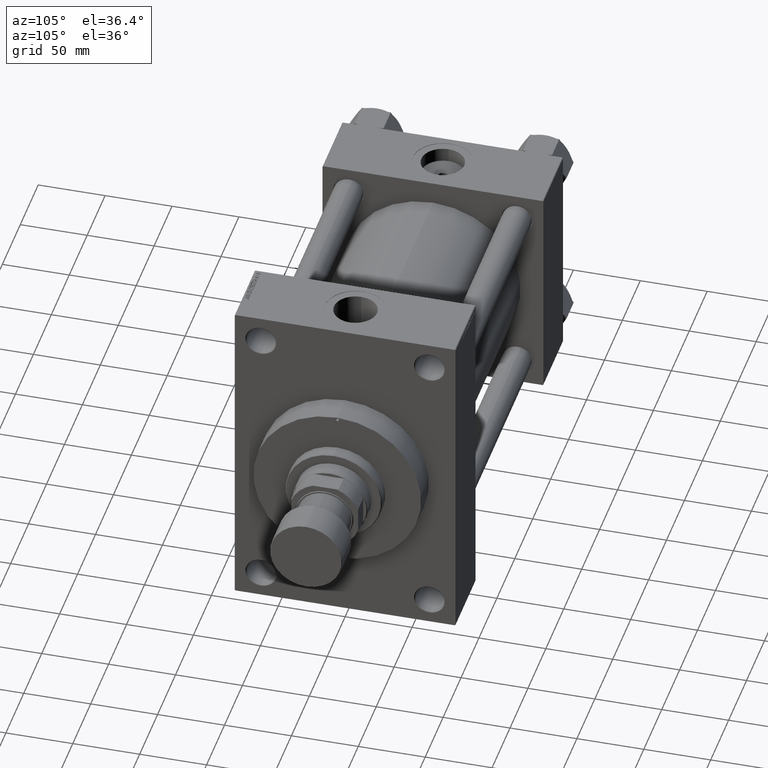
[diagram: clean part render]
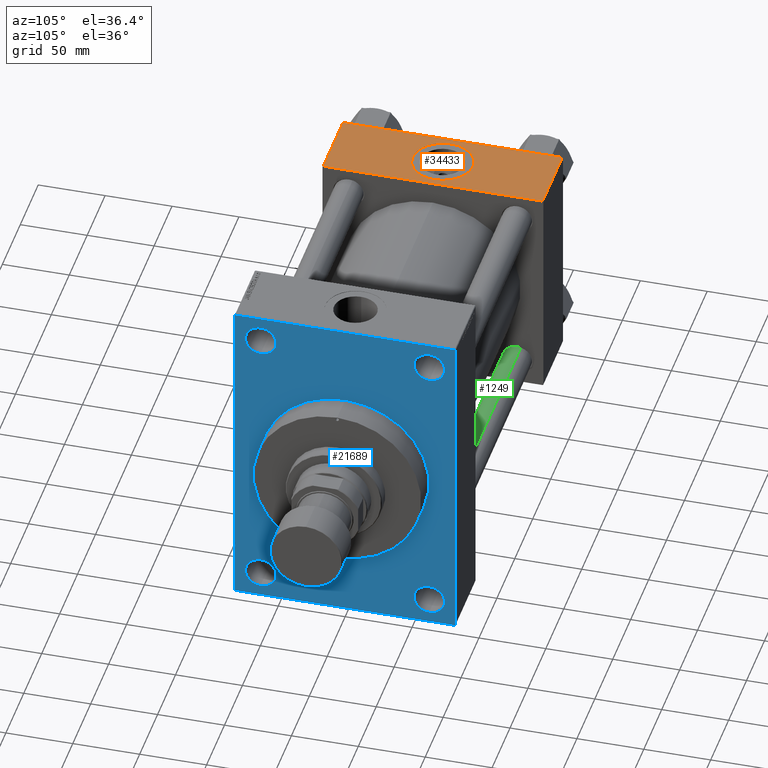
[diagram: same view with three faces highlighted in distinct colors, each labeled with its STEP entity id]
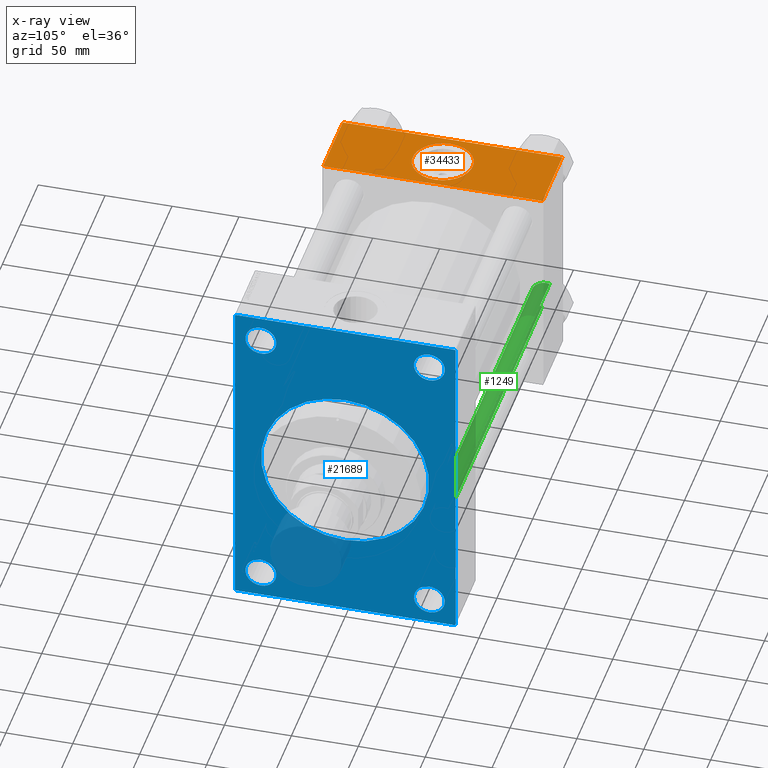
[diagram: x-ray of the same camera — body ghosted, the three highlighted faces saturated]
A machine part, auxiliary view with three faces highlighted in distinct colors.
The next image is the same camera in x-ray (body ghosted, the three faces saturated) — at least one of them is partly hidden behind the body in this view.
Their STEP definitions:

[orange] entity #34433 — the highlighted planar face has unit normal (0, 0, -1).
#263 = DIRECTION ( 'NONE',  ( 0.000000000000000000, 1.000000000000000000, 8.410780489584519171E-17 ) ) ;
#538 = EDGE_LOOP ( 'NONE', ( #36814, #48332 ) ) ;
#925 = CARTESIAN_POINT ( 'NONE',  ( 0.000000000000000000, 82.00000000000005684, 82.50000000000002842 ) ) ;
#1669 = DIRECTION ( 'NONE',  ( 0.000000000000000000, 0.000000000000000000, 1.000000000000000000 ) ) ;
#1886 = VERTEX_POINT ( 'NONE', #32126 ) ;
#2203 = EDGE_CURVE ( 'NONE', #10180, #31704, #31839, .T. ) ;
#3497 = DIRECTION ( 'NONE',  ( -1.000000000000000000, 0.000000000000000000, 0.000000000000000000 ) ) ;
#4707 = AXIS2_PLACEMENT_3D ( 'NONE', #33230, #25901, #263 ) ;
#4759 = CARTESIAN_POINT ( 'NONE',  ( 55.00000000000000000, -81.99999999999997158, 82.50000000000001421 ) ) ;
#7058 = CARTESIAN_POINT ( 'NONE',  ( 0.000000000000000000, 82.50000000000002842, 82.50000000000002842 ) ) ;
#9360 = ORIENTED_EDGE ( 'NONE', *, *, #10291, .T. ) ;
#10180 = VERTEX_POINT ( 'NONE', #20505 ) ;
#10291 = EDGE_CURVE ( 'NONE', #10375, #36342, #36356, .T. ) ;
#10375 = VERTEX_POINT ( 'NONE', #925 ) ;
#10455 = VECTOR ( 'NONE', #34538, 1000.000000000000000 ) ;
#11335 = ORIENTED_EDGE ( 'NONE', *, *, #2203, .F. ) ;
#13257 = CARTESIAN_POINT ( 'NONE',  ( 55.00000000000000000, 82.50000000000002842, 82.50000000000002842 ) ) ;
#14947 = VECTOR ( 'NONE', #28167, 1000.000000000000000 ) ;
#17334 = EDGE_CURVE ( 'NONE', #36342, #31704, #23549, .T. ) ;
#18030 = DIRECTION ( 'NONE',  ( 0.000000000000000000, -1.000000000000000000, -8.410780489584519171E-17 ) ) ;
#18689 = CIRCLE ( 'NONE', #30388, 22.50000000000000355 ) ;
#20214 = CARTESIAN_POINT ( 'NONE',  ( 27.50000000000000000, -8.673617379884037050E-15, 82.50000000000001421 ) ) ;
#20505 = CARTESIAN_POINT ( 'NONE',  ( 55.00000000000000000, 82.00000000000005684, 82.50000000000002842 ) ) ;
#23549 = LINE ( 'NONE', #4759, #10455 ) ;
#24131 = VERTEX_POINT ( 'NONE', #35245 ) ;
#24797 = CIRCLE ( 'NONE', #27118, 22.50000000000000355 ) ;
#25471 = CARTESIAN_POINT ( 'NONE',  ( 0.000000000000000000, 82.00000000000005684, 82.50000000000002842 ) ) ;
#25901 = DIRECTION ( 'NONE',  ( 0.000000000000000000, 8.410780489584519171E-17, -1.000000000000000000 ) ) ;
#26382 = FACE_OUTER_BOUND ( 'NONE', #33188, .T. ) ;
#26715 = EDGE_CURVE ( 'NONE', #1886, #24131, #24797, .T. ) ;
#27118 = AXIS2_PLACEMENT_3D ( 'NONE', #20214, #1669, #38534 ) ;
#28167 = DIRECTION ( 'NONE',  ( 0.000000000000000000, -1.000000000000000000, -8.410780489584519171E-17 ) ) ;
#29941 = VECTOR ( 'NONE', #3497, 1000.000000000000000 ) ;
#30388 = AXIS2_PLACEMENT_3D ( 'NONE', #46529, #38693, #35506 ) ;
#30810 = CARTESIAN_POINT ( 'NONE',  ( 0.000000000000000000, -81.99999999999997158, 82.50000000000001421 ) ) ;
#31704 = VERTEX_POINT ( 'NONE', #34941 ) ;
#31839 = LINE ( 'NONE', #13257, #14947 ) ;
#32126 = CARTESIAN_POINT ( 'NONE',  ( 50.00000000000000000, -8.673617379884037050E-15, 82.50000000000001421 ) ) ;
#33188 = EDGE_LOOP ( 'NONE', ( #9360, #47597, #11335, #34666 ) ) ;
#33230 = CARTESIAN_POINT ( 'NONE',  ( 55.00000000000000000, 82.50000000000002842, 82.50000000000002842 ) ) ;
#33495 = EDGE_CURVE ( 'NONE', #24131, #1886, #18689, .T. ) ;
#34182 = FACE_BOUND ( 'NONE', #538, .T. ) ;
#34433 = ADVANCED_FACE ( 'NONE', ( #34182, #26382 ), #40556, .F. ) ;
#34538 = DIRECTION ( 'NONE',  ( 1.000000000000000000, 0.000000000000000000, 0.000000000000000000 ) ) ;
#34666 = ORIENTED_EDGE ( 'NONE', *, *, #39026, .T. ) ;
#34941 = CARTESIAN_POINT ( 'NONE',  ( 55.00000000000000000, -81.99999999999997158, 82.50000000000001421 ) ) ;
#35245 = CARTESIAN_POINT ( 'NONE',  ( 4.999999999999993783, -5.918162081802491483E-15, 82.50000000000001421 ) ) ;
#35506 = DIRECTION ( 'NONE',  ( 1.000000000000000000, 0.000000000000000000, 0.000000000000000000 ) ) ;
#36342 = VERTEX_POINT ( 'NONE', #30810 ) ;
#36356 = LINE ( 'NONE', #7058, #42336 ) ;
#36814 = ORIENTED_EDGE ( 'NONE', *, *, #26715, .F. ) ;
#38534 = DIRECTION ( 'NONE',  ( 1.000000000000000000, 0.000000000000000000, 0.000000000000000000 ) ) ;
#38693 = DIRECTION ( 'NONE',  ( 0.000000000000000000, 0.000000000000000000, 1.000000000000000000 ) ) ;
#39026 = EDGE_CURVE ( 'NONE', #10180, #10375, #44764, .T. ) ;
#40556 = PLANE ( 'NONE',  #4707 ) ;
#42336 = VECTOR ( 'NONE', #18030, 1000.000000000000000 ) ;
#44764 = LINE ( 'NONE', #25471, #29941 ) ;
#46529 = CARTESIAN_POINT ( 'NONE',  ( 27.50000000000000000, -8.673617379884037050E-15, 82.50000000000001421 ) ) ;
#47597 = ORIENTED_EDGE ( 'NONE', *, *, #17334, .T. ) ;
#48332 = ORIENTED_EDGE ( 'NONE', *, *, #33495, .F. ) ;

[blue] entity #21689 — the highlighted planar face has unit normal (-1, 0, 0).
#25 = FACE_BOUND ( 'NONE', #29061, .T. ) ;
#147 = AXIS2_PLACEMENT_3D ( 'NONE', #7076, #21965, #48123 ) ;
#179 = AXIS2_PLACEMENT_3D ( 'NONE', #40265, #32699, #11196 ) ;
#791 = EDGE_LOOP ( 'NONE', ( #25084, #17901 ) ) ;
#900 = CIRCLE ( 'NONE', #147, 11.50000000000001066 ) ;
#1728 = CARTESIAN_POINT ( 'NONE',  ( 300.0000000000000000, 0.000000000000000000, -62.75000000000000000 ) ) ;
#1750 = CIRCLE ( 'NONE', #179, 62.75000000000000000 ) ;
#2105 = CARTESIAN_POINT ( 'NONE',  ( 300.0000000000000000, 82.49999999999998579, 123.0000000000000711 ) ) ;
#2107 = EDGE_CURVE ( 'NONE', #7606, #47953, #27430, .T. ) ;
#2146 = CARTESIAN_POINT ( 'NONE',  ( 300.0000000000000000, -82.00000000000002842, -123.5000000000000142 ) ) ;
#2496 = DIRECTION ( 'NONE',  ( -1.000000000000000000, 0.000000000000000000, -0.000000000000000000 ) ) ;
#2520 = VERTEX_POINT ( 'NONE', #31869 ) ;
#3097 = EDGE_CURVE ( 'NONE', #2520, #12336, #32935, .T. ) ;
#3196 = FACE_BOUND ( 'NONE', #32893, .T. ) ;
#3305 = CARTESIAN_POINT ( 'NONE',  ( 300.0000000000000000, 63.00000000000000000, 115.5000000000000000 ) ) ;
#3348 = ORIENTED_EDGE ( 'NONE', *, *, #2107, .T. ) ;
#3439 = CARTESIAN_POINT ( 'NONE',  ( 300.0000000000000000, -82.00000000000002842, -123.5000000000000142 ) ) ;
#3447 = DIRECTION ( 'NONE',  ( -1.000000000000000000, 0.000000000000000000, -0.000000000000000000 ) ) ;
#3481 = VECTOR ( 'NONE', #30171, 1000.000000000000000 ) ;
#3922 = DIRECTION ( 'NONE',  ( 0.000000000000000000, 0.000000000000000000, 1.000000000000000000 ) ) ;
#4113 = DIRECTION ( 'NONE',  ( 0.000000000000000000, 0.000000000000000000, 1.000000000000000000 ) ) ;
#4199 = ORIENTED_EDGE ( 'NONE', *, *, #5334, .T. ) ;
#4719 = CARTESIAN_POINT ( 'NONE',  ( 300.0000000000000000, -63.00000000000000000, 103.9999999999999858 ) ) ;
#5043 = CIRCLE ( 'NONE', #39371, 62.75000000000000000 ) ;
#5229 = CARTESIAN_POINT ( 'NONE',  ( 300.0000000000000000, 82.50000000000000000, -122.9999999999999858 ) ) ;
#5334 = EDGE_CURVE ( 'NONE', #20241, #16089, #900, .T. ) ;
#5939 = CARTESIAN_POINT ( 'NONE',  ( 300.0000000000000000, -63.00000000000000000, -104.0000000000000142 ) ) ;
#6368 = EDGE_CURVE ( 'NONE', #11572, #12476, #15399, .T. ) ;
#6537 = EDGE_CURVE ( 'NONE', #11346, #32465, #1750, .T. ) ;
#6559 = CARTESIAN_POINT ( 'NONE',  ( 300.0000000000000000, 82.49999999999998579, 123.5000000000000142 ) ) ;
#7076 = CARTESIAN_POINT ( 'NONE',  ( 300.0000000000000000, 63.00000000000000000, 104.0000000000000000 ) ) ;
#7172 = VECTOR ( 'NONE', #22958, 1000.000000000000000 ) ;
#7193 = ORIENTED_EDGE ( 'NONE', *, *, #15031, .T. ) ;
#7349 = DIRECTION ( 'NONE',  ( -1.000000000000000000, 0.000000000000000000, -0.000000000000000000 ) ) ;
#7606 = VERTEX_POINT ( 'NONE', #29722 ) ;
#7934 = CARTESIAN_POINT ( 'NONE',  ( 300.0000000000000000, 82.49999999999998579, 123.5000000000000142 ) ) ;
#8031 = VERTEX_POINT ( 'NONE', #17424 ) ;
#8472 = CARTESIAN_POINT ( 'NONE',  ( 300.0000000000000000, 82.00000000000004263, 123.5000000000000142 ) ) ;
#8824 = CIRCLE ( 'NONE', #36107, 11.50000000000001066 ) ;
#9457 = ORIENTED_EDGE ( 'NONE', *, *, #6537, .T. ) ;
#10754 = FACE_BOUND ( 'NONE', #791, .T. ) ;
#11196 = DIRECTION ( 'NONE',  ( 0.000000000000000000, 0.000000000000000000, 1.000000000000000000 ) ) ;
#11346 = VERTEX_POINT ( 'NONE', #1728 ) ;
#11572 = VERTEX_POINT ( 'NONE', #23894 ) ;
#11682 = ORIENTED_EDGE ( 'NONE', *, *, #40082, .F. ) ;
#11722 = CARTESIAN_POINT ( 'NONE',  ( 300.0000000000000000, -82.50000000000002842, 122.9999999999999716 ) ) ;
#11873 = AXIS2_PLACEMENT_3D ( 'NONE', #22663, #37550, #4113 ) ;
#12111 = ORIENTED_EDGE ( 'NONE', *, *, #38346, .T. ) ;
#12336 = VERTEX_POINT ( 'NONE', #14885 ) ;
#12476 = VERTEX_POINT ( 'NONE', #34881 ) ;
#12848 = DIRECTION ( 'NONE',  ( 0.000000000000000000, -0.7071067811865474617, 0.7071067811865474617 ) ) ;
#13375 = DIRECTION ( 'NONE',  ( 0.000000000000000000, 0.000000000000000000, -1.000000000000000000 ) ) ;
#13460 = VECTOR ( 'NONE', #42759, 1000.000000000000000 ) ;
#13604 = AXIS2_PLACEMENT_3D ( 'NONE', #43977, #7349, #3922 ) ;
#13908 = EDGE_CURVE ( 'NONE', #12336, #2520, #32295, .T. ) ;
#14081 = CARTESIAN_POINT ( 'NONE',  ( 300.0000000000000000, -63.00000000000000000, -115.5000000000000142 ) ) ;
#14238 = ORIENTED_EDGE ( 'NONE', *, *, #46769, .T. ) ;
#14289 = VERTEX_POINT ( 'NONE', #14081 ) ;
#14327 = VECTOR ( 'NONE', #21447, 1000.000000000000000 ) ;
#14423 = FACE_OUTER_BOUND ( 'NONE', #33347, .T. ) ;
#14430 = ORIENTED_EDGE ( 'NONE', *, *, #41697, .T. ) ;
#14783 = CARTESIAN_POINT ( 'NONE',  ( 300.0000000000000000, 7.684658664649641591E-15, 62.75000000000000000 ) ) ;
#14885 = CARTESIAN_POINT ( 'NONE',  ( 300.0000000000000000, -63.00000000000000000, 92.49999999999997158 ) ) ;
#15031 = EDGE_CURVE ( 'NONE', #14289, #8031, #8824, .T. ) ;
#15399 = LINE ( 'NONE', #11722, #7172 ) ;
#15888 = CARTESIAN_POINT ( 'NONE',  ( 300.0000000000000000, 82.50000000000000000, -123.5000000000000000 ) ) ;
#15962 = EDGE_CURVE ( 'NONE', #8031, #14289, #20540, .T. ) ;
#16089 = VERTEX_POINT ( 'NONE', #29136 ) ;
#16118 = DIRECTION ( 'NONE',  ( -1.000000000000000000, 0.000000000000000000, -0.000000000000000000 ) ) ;
#16242 = EDGE_CURVE ( 'NONE', #37927, #35573, #42169, .T. ) ;
#16841 = EDGE_CURVE ( 'NONE', #35573, #11572, #36582, .T. ) ;
#17379 = DIRECTION ( 'NONE',  ( 0.000000000000000000, 0.000000000000000000, 1.000000000000000000 ) ) ;
#17424 = CARTESIAN_POINT ( 'NONE',  ( 300.0000000000000000, -63.00000000000000000, -92.50000000000000000 ) ) ;
#17479 = VECTOR ( 'NONE', #12848, 1000.000000000000114 ) ;
#17636 = AXIS2_PLACEMENT_3D ( 'NONE', #44228, #3447, #44718 ) ;
#17901 = ORIENTED_EDGE ( 'NONE', *, *, #3097, .T. ) ;
#18078 = PLANE ( 'NONE',  #17636 ) ;
#18331 = FACE_BOUND ( 'NONE', #33284, .T. ) ;
#18932 = LINE ( 'NONE', #7934, #3481 ) ;
#19395 = CARTESIAN_POINT ( 'NONE',  ( 300.0000000000000000, 63.00000000000000000, -92.50000000000000000 ) ) ;
#20149 = ORIENTED_EDGE ( 'NONE', *, *, #15962, .T. ) ;
#20160 = ORIENTED_EDGE ( 'NONE', *, *, #16841, .T. ) ;
#20241 = VERTEX_POINT ( 'NONE', #3305 ) ;
#20343 = DIRECTION ( 'NONE',  ( -0.000000000000000000, 0.7071067811865376918, 0.7071067811865574537 ) ) ;
#20540 = CIRCLE ( 'NONE', #33779, 11.50000000000001066 ) ;
#21447 = DIRECTION ( 'NONE',  ( 0.000000000000000000, -1.000000000000000000, -2.523234146875355505E-16 ) ) ;
#21689 = ADVANCED_FACE ( 'NONE', ( #10754, #18331, #33469, #25, #3196, #14423 ), #18078, .F. ) ;
#21762 = CARTESIAN_POINT ( 'NONE',  ( 300.0000000000000000, 63.00000000000000000, 104.0000000000000000 ) ) ;
#21965 = DIRECTION ( 'NONE',  ( -1.000000000000000000, 0.000000000000000000, -0.000000000000000000 ) ) ;
#22663 = CARTESIAN_POINT ( 'NONE',  ( 300.0000000000000000, -63.00000000000000000, 103.9999999999999858 ) ) ;
#22786 = DIRECTION ( 'NONE',  ( 0.000000000000000000, 0.000000000000000000, 1.000000000000000000 ) ) ;
#22811 = ORIENTED_EDGE ( 'NONE', *, *, #22839, .T. ) ;
#22839 = EDGE_CURVE ( 'NONE', #35248, #35912, #36392, .T. ) ;
#22958 = DIRECTION ( 'NONE',  ( -0.000000000000000000, -0.7071067811865378028, -0.7071067811865573427 ) ) ;
#22964 = DIRECTION ( 'NONE',  ( 0.000000000000000000, 0.000000000000000000, 1.000000000000000000 ) ) ;
#23047 = CIRCLE ( 'NONE', #41739, 11.50000000000001066 ) ;
#23071 = VERTEX_POINT ( 'NONE', #27576 ) ;
#23272 = DIRECTION ( 'NONE',  ( -1.000000000000000000, 0.000000000000000000, -0.000000000000000000 ) ) ;
#23287 = CARTESIAN_POINT ( 'NONE',  ( 300.0000000000000000, -63.00000000000000000, -104.0000000000000142 ) ) ;
#23894 = CARTESIAN_POINT ( 'NONE',  ( 300.0000000000000000, -82.00000000000004263, 123.4999999999999716 ) ) ;
#24347 = DIRECTION ( 'NONE',  ( -1.000000000000000000, 0.000000000000000000, -0.000000000000000000 ) ) ;
#24385 = EDGE_LOOP ( 'NONE', ( #34962, #27728 ) ) ;
#25084 = ORIENTED_EDGE ( 'NONE', *, *, #13908, .T. ) ;
#25347 = CARTESIAN_POINT ( 'NONE',  ( 300.0000000000000000, -82.50000000000002842, 123.4999999999999716 ) ) ;
#27430 = LINE ( 'NONE', #5229, #32907 ) ;
#27576 = CARTESIAN_POINT ( 'NONE',  ( 300.0000000000000000, 63.00000000000000000, -115.5000000000000142 ) ) ;
#27728 = ORIENTED_EDGE ( 'NONE', *, *, #44877, .T. ) ;
#27854 = LINE ( 'NONE', #15888, #13460 ) ;
#28010 = DIRECTION ( 'NONE',  ( 0.000000000000000000, 0.000000000000000000, 1.000000000000000000 ) ) ;
#28373 = CARTESIAN_POINT ( 'NONE',  ( 300.0000000000000000, -82.50000000000002842, -123.0000000000000853 ) ) ;
#29061 = EDGE_LOOP ( 'NONE', ( #14238, #4199 ) ) ;
#29136 = CARTESIAN_POINT ( 'NONE',  ( 300.0000000000000000, 63.00000000000000000, 92.49999999999998579 ) ) ;
#29389 = EDGE_CURVE ( 'NONE', #23071, #33324, #46639, .T. ) ;
#29473 = AXIS2_PLACEMENT_3D ( 'NONE', #45612, #24347, #28010 ) ;
#29722 = CARTESIAN_POINT ( 'NONE',  ( 300.0000000000000000, 82.00000000000000000, -123.5000000000000000 ) ) ;
#30162 = VECTOR ( 'NONE', #40548, 1000.000000000000114 ) ;
#30171 = DIRECTION ( 'NONE',  ( 0.000000000000000000, 5.618537574013950123E-17, -1.000000000000000000 ) ) ;
#30865 = DIRECTION ( 'NONE',  ( 0.000000000000000000, 0.000000000000000000, 1.000000000000000000 ) ) ;
#31021 = CARTESIAN_POINT ( 'NONE',  ( 300.0000000000000000, 0.000000000000000000, 0.000000000000000000 ) ) ;
#31830 = DIRECTION ( 'NONE',  ( -1.000000000000000000, 0.000000000000000000, -0.000000000000000000 ) ) ;
#31869 = CARTESIAN_POINT ( 'NONE',  ( 300.0000000000000000, -63.00000000000000000, 115.4999999999999858 ) ) ;
#32295 = CIRCLE ( 'NONE', #34613, 11.50000000000001066 ) ;
#32465 = VERTEX_POINT ( 'NONE', #14783 ) ;
#32537 = DIRECTION ( 'NONE',  ( 0.000000000000000000, 0.000000000000000000, 1.000000000000000000 ) ) ;
#32699 = DIRECTION ( 'NONE',  ( -1.000000000000000000, 0.000000000000000000, -0.000000000000000000 ) ) ;
#32893 = EDGE_LOOP ( 'NONE', ( #9457, #14430 ) ) ;
#32907 = VECTOR ( 'NONE', #20343, 999.9999999999998863 ) ;
#32935 = CIRCLE ( 'NONE', #11873, 11.50000000000001066 ) ;
#33284 = EDGE_LOOP ( 'NONE', ( #7193, #20149 ) ) ;
#33324 = VERTEX_POINT ( 'NONE', #19395 ) ;
#33347 = EDGE_LOOP ( 'NONE', ( #12111, #22811, #42551, #3348, #11682, #45735, #20160, #37929 ) ) ;
#33469 = FACE_BOUND ( 'NONE', #24385, .T. ) ;
#33779 = AXIS2_PLACEMENT_3D ( 'NONE', #23287, #38173, #30865 ) ;
#34613 = AXIS2_PLACEMENT_3D ( 'NONE', #4719, #23272, #22786 ) ;
#34881 = CARTESIAN_POINT ( 'NONE',  ( 300.0000000000000000, -82.50000000000002842, 122.9999999999999716 ) ) ;
#34962 = ORIENTED_EDGE ( 'NONE', *, *, #29389, .T. ) ;
#35248 = VERTEX_POINT ( 'NONE', #28373 ) ;
#35573 = VERTEX_POINT ( 'NONE', #39544 ) ;
#35912 = VERTEX_POINT ( 'NONE', #2146 ) ;
#36107 = AXIS2_PLACEMENT_3D ( 'NONE', #5939, #31830, #32537 ) ;
#36392 = LINE ( 'NONE', #3439, #30162 ) ;
#36582 = LINE ( 'NONE', #6559, #14327 ) ;
#37241 = EDGE_CURVE ( 'NONE', #7606, #35912, #27854, .T. ) ;
#37550 = DIRECTION ( 'NONE',  ( -1.000000000000000000, 0.000000000000000000, -0.000000000000000000 ) ) ;
#37927 = VERTEX_POINT ( 'NONE', #2105 ) ;
#37929 = ORIENTED_EDGE ( 'NONE', *, *, #6368, .T. ) ;
#38173 = DIRECTION ( 'NONE',  ( -1.000000000000000000, 0.000000000000000000, -0.000000000000000000 ) ) ;
#38346 = EDGE_CURVE ( 'NONE', #12476, #35248, #47350, .T. ) ;
#39371 = AXIS2_PLACEMENT_3D ( 'NONE', #31021, #16118, #22964 ) ;
#39544 = CARTESIAN_POINT ( 'NONE',  ( 300.0000000000000000, 82.00000000000004263, 123.5000000000000142 ) ) ;
#40082 = EDGE_CURVE ( 'NONE', #37927, #47953, #18932, .T. ) ;
#40144 = CIRCLE ( 'NONE', #13604, 11.50000000000001066 ) ;
#40265 = CARTESIAN_POINT ( 'NONE',  ( 300.0000000000000000, 0.000000000000000000, 0.000000000000000000 ) ) ;
#40548 = DIRECTION ( 'NONE',  ( 0.000000000000000000, 0.7071067811865965336, -0.7071067811864985009 ) ) ;
#41697 = EDGE_CURVE ( 'NONE', #32465, #11346, #5043, .T. ) ;
#41739 = AXIS2_PLACEMENT_3D ( 'NONE', #21762, #2496, #17379 ) ;
#42169 = LINE ( 'NONE', #8472, #17479 ) ;
#42551 = ORIENTED_EDGE ( 'NONE', *, *, #37241, .F. ) ;
#42759 = DIRECTION ( 'NONE',  ( 0.000000000000000000, -1.000000000000000000, -8.410780489584517938E-17 ) ) ;
#43977 = CARTESIAN_POINT ( 'NONE',  ( 300.0000000000000000, 63.00000000000000000, -104.0000000000000142 ) ) ;
#44228 = CARTESIAN_POINT ( 'NONE',  ( 300.0000000000000000, 0.000000000000000000, 0.000000000000000000 ) ) ;
#44718 = DIRECTION ( 'NONE',  ( -0.000000000000000000, 0.000000000000000000, 1.000000000000000000 ) ) ;
#44877 = EDGE_CURVE ( 'NONE', #33324, #23071, #40144, .T. ) ;
#45612 = CARTESIAN_POINT ( 'NONE',  ( 300.0000000000000000, 63.00000000000000000, -104.0000000000000142 ) ) ;
#45735 = ORIENTED_EDGE ( 'NONE', *, *, #16242, .T. ) ;
#46293 = VECTOR ( 'NONE', #13375, 1000.000000000000000 ) ;
#46639 = CIRCLE ( 'NONE', #29473, 11.50000000000001066 ) ;
#46769 = EDGE_CURVE ( 'NONE', #16089, #20241, #23047, .T. ) ;
#47350 = LINE ( 'NONE', #25347, #46293 ) ;
#47953 = VERTEX_POINT ( 'NONE', #48000 ) ;
#48000 = CARTESIAN_POINT ( 'NONE',  ( 300.0000000000000000, 82.50000000000000000, -122.9999999999999858 ) ) ;
#48123 = DIRECTION ( 'NONE',  ( 0.000000000000000000, 0.000000000000000000, 1.000000000000000000 ) ) ;

[green] entity #1249 — the highlighted cylindrical surface (edge-blend (fillet) strip) has radius 11 mm, axis along (1, -0, 0).
#1249 = ADVANCED_FACE ( 'NONE', ( #2290 ), #43299, .T. ) ;
#2290 = FACE_OUTER_BOUND ( 'NONE', #11392, .T. ) ;
#4473 = VERTEX_POINT ( 'NONE', #40278 ) ;
#4611 = DIRECTION ( 'NONE',  ( 0.000000000000000000, 0.000000000000000000, -1.000000000000000000 ) ) ;
#6125 = DIRECTION ( 'NONE',  ( 1.000000000000000000, 0.000000000000000000, 0.000000000000000000 ) ) ;
#6903 = CIRCLE ( 'NONE', #13131, 11.00000000000000000 ) ;
#7649 = CARTESIAN_POINT ( 'NONE',  ( 11.00000000000000000, 1.347111479062088405E-15, 283.5000000000001137 ) ) ;
#8912 = DIRECTION ( 'NONE',  ( -0.000000000000000000, -0.000000000000000000, -1.000000000000000000 ) ) ;
#9156 = LINE ( 'NONE', #27229, #44858 ) ;
#9351 = CARTESIAN_POINT ( 'NONE',  ( 0.000000000000000000, 0.000000000000000000, 284.0000000000000000 ) ) ;
#11392 = EDGE_LOOP ( 'NONE', ( #23471, #27091, #35343, #47993 ) ) ;
#13131 = AXIS2_PLACEMENT_3D ( 'NONE', #46682, #13426, #6125 ) ;
#13426 = DIRECTION ( 'NONE',  ( -0.000000000000000000, -0.000000000000000000, 1.000000000000000000 ) ) ;
#13731 = DIRECTION ( 'NONE',  ( -1.000000000000000000, 0.000000000000000000, 0.000000000000000000 ) ) ;
#15940 = CARTESIAN_POINT ( 'NONE',  ( -11.00000000000000000, 0.000000000000000000, 0.5000000000000559552 ) ) ;
#17288 = AXIS2_PLACEMENT_3D ( 'NONE', #9351, #28158, #13731 ) ;
#17530 = VERTEX_POINT ( 'NONE', #7649 ) ;
#18280 = EDGE_CURVE ( 'NONE', #32152, #25906, #9156, .T. ) ;
#19725 = CARTESIAN_POINT ( 'NONE',  ( 0.000000000000000000, 0.000000000000000000, 283.5000000000001137 ) ) ;
#23299 = EDGE_CURVE ( 'NONE', #17530, #4473, #28889, .T. ) ;
#23471 = ORIENTED_EDGE ( 'NONE', *, *, #23299, .F. ) ;
#25490 = VECTOR ( 'NONE', #39150, 1000.000000000000000 ) ;
#25906 = VERTEX_POINT ( 'NONE', #15940 ) ;
#27091 = ORIENTED_EDGE ( 'NONE', *, *, #37615, .T. ) ;
#27229 = CARTESIAN_POINT ( 'NONE',  ( -11.00000000000000000, 0.000000000000000000, 284.0000000000000000 ) ) ;
#28158 = DIRECTION ( 'NONE',  ( -0.000000000000000000, -0.000000000000000000, -1.000000000000000000 ) ) ;
#28889 = LINE ( 'NONE', #47230, #25490 ) ;
#30442 = CARTESIAN_POINT ( 'NONE',  ( -11.00000000000000000, 0.000000000000000000, 283.5000000000001137 ) ) ;
#30791 = EDGE_CURVE ( 'NONE', #25906, #4473, #6903, .T. ) ;
#32152 = VERTEX_POINT ( 'NONE', #30442 ) ;
#34630 = DIRECTION ( 'NONE',  ( 1.000000000000000000, 0.000000000000000000, 0.000000000000000000 ) ) ;
#35343 = ORIENTED_EDGE ( 'NONE', *, *, #18280, .T. ) ;
#37615 = EDGE_CURVE ( 'NONE', #17530, #32152, #37653, .T. ) ;
#37653 = CIRCLE ( 'NONE', #38420, 11.00000000000000000 ) ;
#38420 = AXIS2_PLACEMENT_3D ( 'NONE', #19725, #4611, #34630 ) ;
#39150 = DIRECTION ( 'NONE',  ( -0.000000000000000000, -0.000000000000000000, -1.000000000000000000 ) ) ;
#40278 = CARTESIAN_POINT ( 'NONE',  ( 11.00000000000000000, 1.347111479062088405E-15, 0.5000000000000559552 ) ) ;
#43299 = CYLINDRICAL_SURFACE ( 'NONE', #17288, 11.00000000000000000 ) ;
#44858 = VECTOR ( 'NONE', #8912, 1000.000000000000000 ) ;
#46682 = CARTESIAN_POINT ( 'NONE',  ( 0.000000000000000000, 0.000000000000000000, 0.5000000000000559552 ) ) ;
#47230 = CARTESIAN_POINT ( 'NONE',  ( 11.00000000000000000, 1.347111479062088405E-15, 284.0000000000000000 ) ) ;
#47993 = ORIENTED_EDGE ( 'NONE', *, *, #30791, .T. ) ;